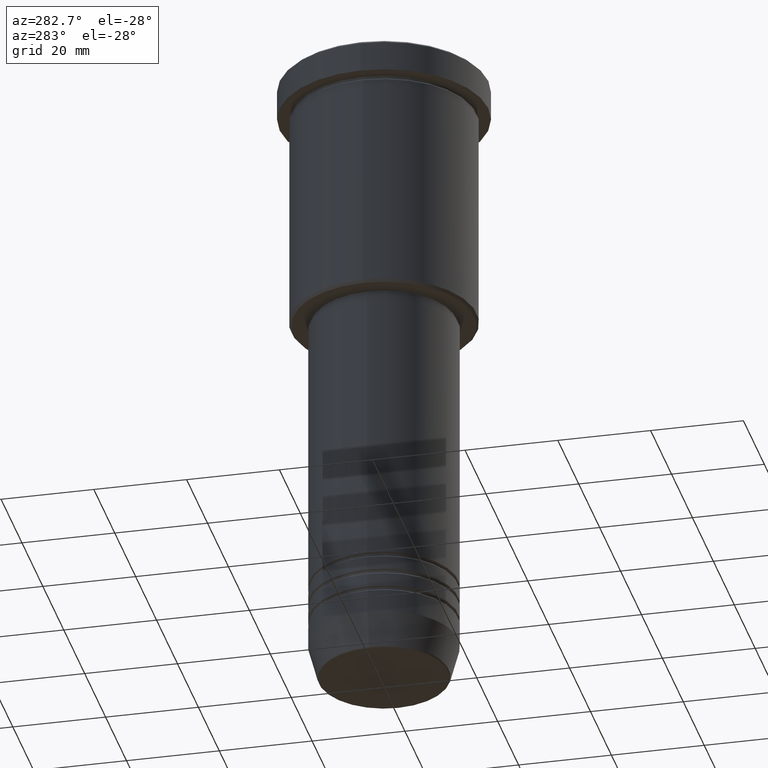
[diagram: clean part render]
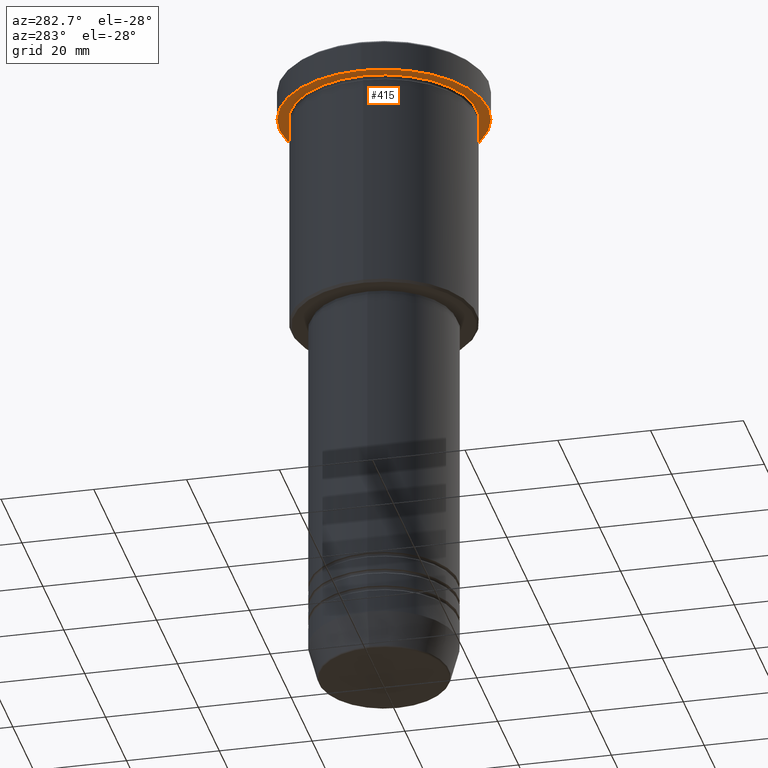
[diagram: same view with one face highlighted and labeled with its STEP entity id]
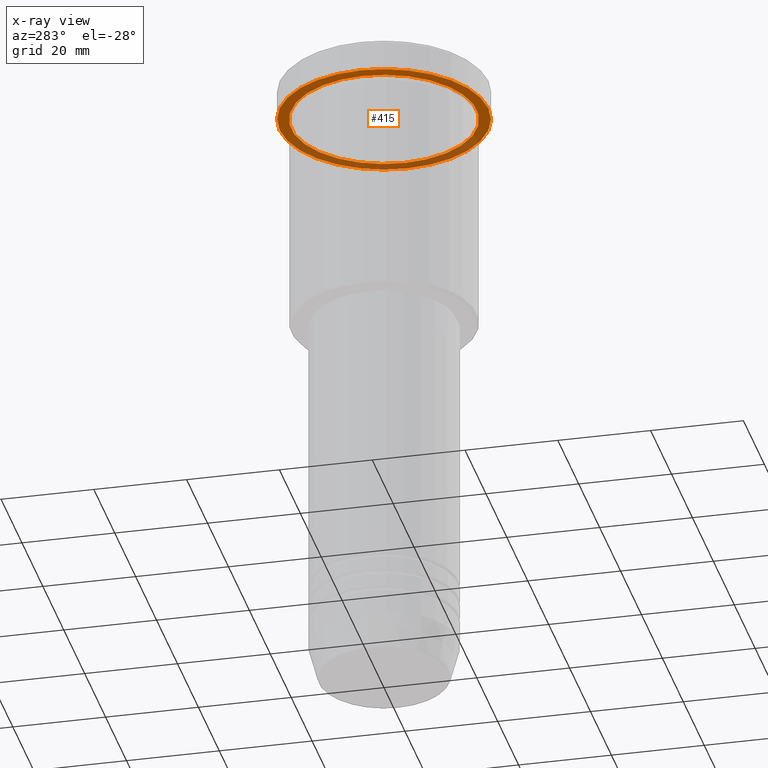
[diagram: x-ray of the same camera — body ghosted, the highlighted face saturated]
A machine part, auxiliary view. The second image highlights one B-rep face of the part: STEP entity #415.
The next image is the same camera in x-ray: the body ghosted, the highlighted face saturated — about 37% of this face is hidden behind the body in this view.
In plain terms, the highlighted planar face has unit normal (0, 0, -1).
Its self-contained STEP definition (entity closure, byte-faithful):
#9 = ORIENTED_EDGE ( 'NONE', *, *, #1046, .F. ) ;
#64 = DIRECTION ( 'NONE',  ( -1.000000000000000000, 0.000000000000000000, -0.000000000000000000 ) ) ;
#87 = DIRECTION ( 'NONE',  ( -0.000000000000000000, -0.000000000000000000, 1.000000000000000000 ) ) ;
#93 = CARTESIAN_POINT ( 'NONE',  ( 0.000000000000000000, 0.000000000000000000, -6.999999999999995559 ) ) ;
#108 = AXIS2_PLACEMENT_3D ( 'NONE', #901, #87, #820 ) ;
#134 = EDGE_CURVE ( 'NONE', #1182, #304, #382, .T. ) ;
#166 = CIRCLE ( 'NONE', #505, 22.50000000000000000 ) ;
#199 = CIRCLE ( 'NONE', #108, 22.50000000000000000 ) ;
#226 = ORIENTED_EDGE ( 'NONE', *, *, #338, .T. ) ;
#267 = CARTESIAN_POINT ( 'NONE',  ( 0.000000000000000000, 22.50000000000000000, -6.999999999999995559 ) ) ;
#270 = FACE_BOUND ( 'NONE', #1023, .T. ) ;
#288 = EDGE_CURVE ( 'NONE', #973, #1120, #166, .T. ) ;
#304 = VERTEX_POINT ( 'NONE', #1098 ) ;
#338 = EDGE_CURVE ( 'NONE', #304, #1182, #1127, .T. ) ;
#367 = ORIENTED_EDGE ( 'NONE', *, *, #288, .F. ) ;
#382 = CIRCLE ( 'NONE', #618, 20.00000000000000000 ) ;
#388 = DIRECTION ( 'NONE',  ( -0.000000000000000000, -0.000000000000000000, 1.000000000000000000 ) ) ;
#409 = CARTESIAN_POINT ( 'NONE',  ( -20.00000000000000000, 0.000000000000000000, -6.999999999999995559 ) ) ;
#415 = ADVANCED_FACE ( 'NONE', ( #270, #725 ), #971, .T. ) ;
#431 = CARTESIAN_POINT ( 'NONE',  ( 0.000000000000000000, 0.000000000000000000, -6.999999999999995559 ) ) ;
#473 = DIRECTION ( 'NONE',  ( 1.000000000000000000, 0.000000000000000000, 0.000000000000000000 ) ) ;
#483 = CARTESIAN_POINT ( 'NONE',  ( 22.50000000000000000, 0.000000000000000000, -6.999999999999995559 ) ) ;
#505 = AXIS2_PLACEMENT_3D ( 'NONE', #93, #388, #473 ) ;
#515 = ORIENTED_EDGE ( 'NONE', *, *, #134, .T. ) ;
#541 = AXIS2_PLACEMENT_3D ( 'NONE', #267, #1070, #64 ) ;
#550 = CARTESIAN_POINT ( 'NONE',  ( -22.50000000000000000, 2.755455298081544778E-15, -6.999999999999995559 ) ) ;
#573 = CARTESIAN_POINT ( 'NONE',  ( 0.000000000000000000, 0.000000000000000000, -6.999999999999995559 ) ) ;
#592 = DIRECTION ( 'NONE',  ( -1.000000000000000000, 0.000000000000000000, 0.000000000000000000 ) ) ;
#615 = AXIS2_PLACEMENT_3D ( 'NONE', #573, #754, #1117 ) ;
#618 = AXIS2_PLACEMENT_3D ( 'NONE', #431, #966, #592 ) ;
#725 = FACE_OUTER_BOUND ( 'NONE', #1097, .T. ) ;
#754 = DIRECTION ( 'NONE',  ( -0.000000000000000000, -0.000000000000000000, 1.000000000000000000 ) ) ;
#820 = DIRECTION ( 'NONE',  ( 1.000000000000000000, 0.000000000000000000, 0.000000000000000000 ) ) ;
#901 = CARTESIAN_POINT ( 'NONE',  ( 0.000000000000000000, 0.000000000000000000, -6.999999999999995559 ) ) ;
#966 = DIRECTION ( 'NONE',  ( -0.000000000000000000, -0.000000000000000000, 1.000000000000000000 ) ) ;
#971 = PLANE ( 'NONE',  #541 ) ;
#973 = VERTEX_POINT ( 'NONE', #550 ) ;
#1023 = EDGE_LOOP ( 'NONE', ( #515, #226 ) ) ;
#1046 = EDGE_CURVE ( 'NONE', #1120, #973, #199, .T. ) ;
#1070 = DIRECTION ( 'NONE',  ( 0.000000000000000000, 0.000000000000000000, -1.000000000000000000 ) ) ;
#1097 = EDGE_LOOP ( 'NONE', ( #9, #367 ) ) ;
#1098 = CARTESIAN_POINT ( 'NONE',  ( 20.00000000000000000, 2.449293598294706513E-15, -6.999999999999995559 ) ) ;
#1117 = DIRECTION ( 'NONE',  ( -1.000000000000000000, 0.000000000000000000, 0.000000000000000000 ) ) ;
#1120 = VERTEX_POINT ( 'NONE', #483 ) ;
#1127 = CIRCLE ( 'NONE', #615, 20.00000000000000000 ) ;
#1182 = VERTEX_POINT ( 'NONE', #409 ) ;